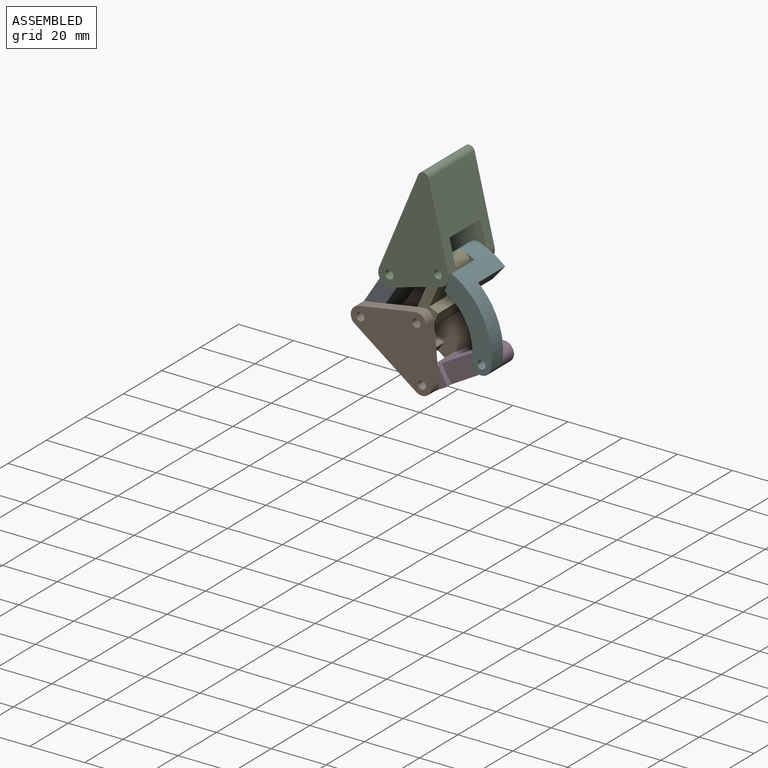
[diagram: assembled view]
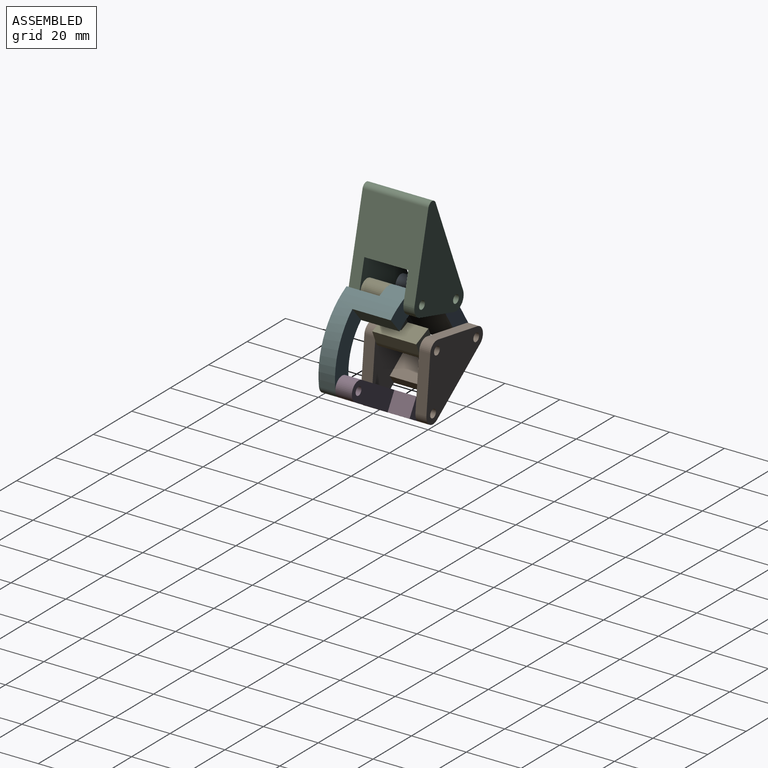
[diagram: assembled view, second angle]
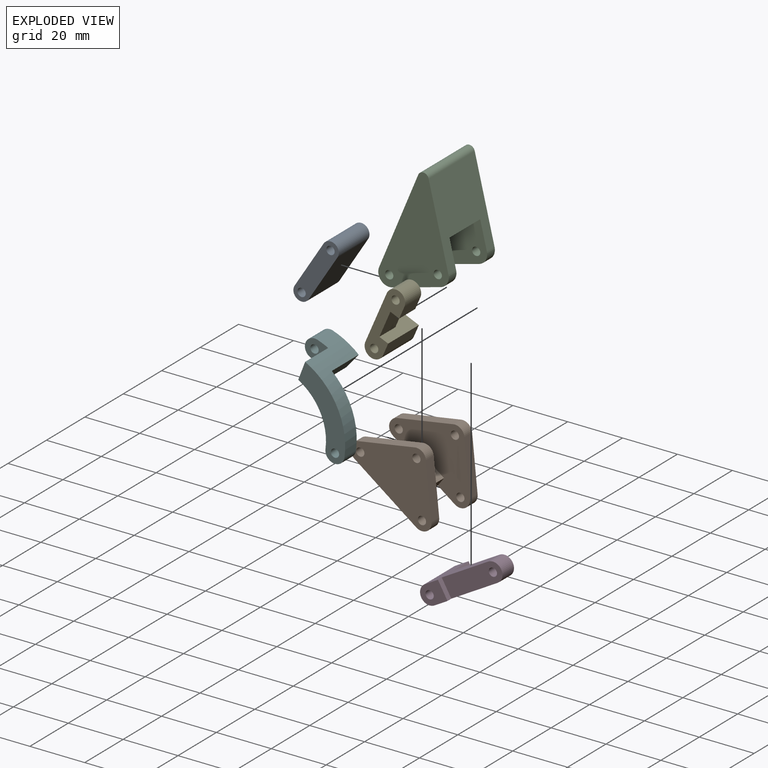
[diagram: exploded view]
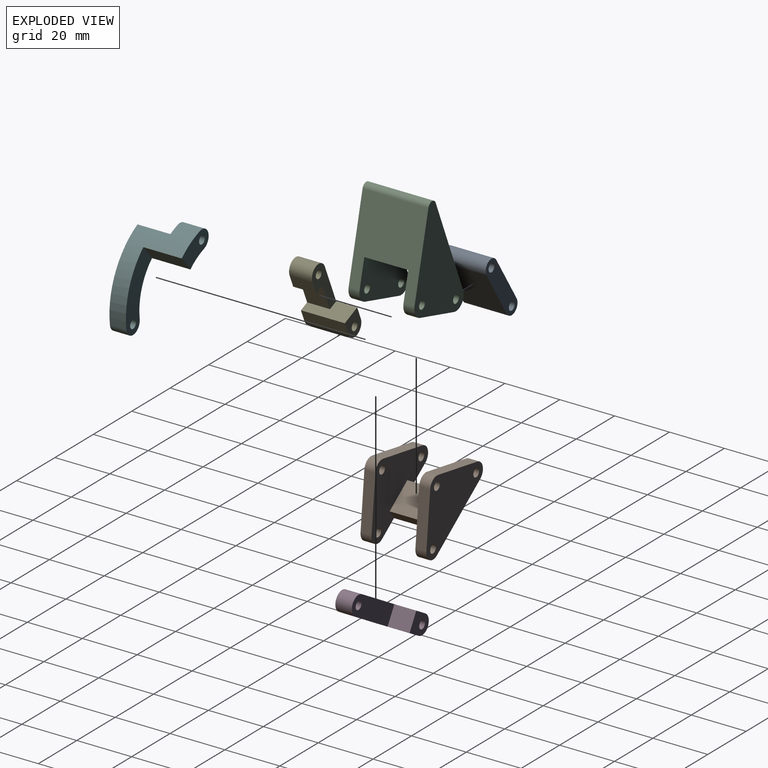
[diagram: exploded view, second angle]
ASSEMBLY  parts=6 mates=7
PART A: 8 faces, bbox 25.7x16x6 mm
  f0: plane 19.7x16mm, normal (0,0,-1), area 315.2mm2, adj f1,f5,f6,f7
  f1: cylinder r=3mm len=16mm, axis (0,1,0), area 150.8mm2, adj f0,f2,f6,f7
  f2: plane 19.7x16mm, normal (0,0,1), area 315.2mm2, adj f1,f5,f6,f7
  f3: cylinder r=1.5mm len=16mm, axis (0,1,0), area 150.8mm2, adj f6,f7
  f4: cylinder r=1.5mm len=16mm, axis (0,1,0), area 150.8mm2, adj f6,f7
  f5: cylinder r=3mm len=16mm, axis (0,1,0), area 150.8mm2, adj f0,f2,f6,f7
  f6: plane 25.7x6mm, normal (0,-1,0), area 132.3mm2, adj f0,f1,f2,f3,f4,f5
  f7: plane 25.7x6mm, normal (0,1,0), area 132.3mm2, adj f0,f1,f2,f3,f4,f5
PART B: 24 faces, bbox 27.1x24x27.7 mm
  f0: cylinder r=3.5mm len=5.85mm, axis (0,1,0), area 32.3mm2, adj f1,f5,f8,f10
  f1: plane 24x20.71mm, normal (-0.74,0,0.67), area 406.1mm2, adj f0,f2,f8,f10,f11,f12,f14,f16
  f2: cylinder r=3.5mm len=6.09mm, axis (0,1,0), area 32.8mm2, adj f1,f3,f8,f10
  f3: plane 20.71x4mm, normal (1,0,0.07), area 83mm2, adj f2,f4,f8,f10
  f4: cylinder r=3.5mm len=4mm, axis (0,1,0), area 22.9mm2, adj f3,f5,f8,f10
  f5: plane 20.05x4mm, normal (0,0,-1), area 80.2mm2, adj f0,f4,f8,f10
  f6: cylinder r=1.5mm len=4mm, axis (0,1,0), area 37.7mm2, adj f8,f10
  f7: cylinder r=1.5mm len=4mm, axis (0,1,0), area 37.7mm2, adj f8,f10
  f8: plane 27.71x27.05mm, normal (0,-1,0), area 465.3mm2, adj f0,f1,f2,f3,f4,f5,f6,f7
  f9: cylinder r=1.5mm len=4mm, axis (0,1,0), area 37.7mm2, adj f8,f10
  f10: plane 27.71x27.05mm, normal (0,1,0), area 421.8mm2, adj f0,f1,f2,f3,f4,f5,f6,f7
  f11: plane 16x2.83mm, normal (0.67,0,0.74), area 61mm2, adj f1,f10,f13,f14
  f12: plane 16x2.83mm, normal (-0.67,0,-0.74), area 61mm2, adj f1,f10,f13,f14
  f13: plane 16x8.48mm, normal (0.74,0,-0.67), area 182.9mm2, adj f10,f11,f12,f14
  f14: plane 27.71x27.05mm, normal (0,-1,0), area 421.8mm2, adj f1,f11,f12,f13,f15,f16,f17,f18
  f15: cylinder r=3.5mm len=4mm, axis (0,1,0), area 22.9mm2, adj f14,f21,f22,f23
  f16: cylinder r=3.5mm len=6.09mm, axis (0,1,0), area 32.8mm2, adj f1,f14,f22,f23
  f17: cylinder r=1.5mm len=4mm, axis (0,1,0), area 37.7mm2, adj f14,f23
  f18: cylinder r=1.5mm len=4mm, axis (0,1,0), area 37.7mm2, adj f14,f23
  f19: cylinder r=1.5mm len=4mm, axis (0,1,0), area 37.7mm2, adj f14,f23
  f20: cylinder r=3.5mm len=5.85mm, axis (0,1,0), area 32.3mm2, adj f1,f14,f21,f23
  f21: plane 20.05x4mm, normal (0,0,-1), area 80.2mm2, adj f14,f15,f20,f23
  f22: plane 20.71x4mm, normal (1,0,0.07), area 83mm2, adj f14,f15,f16,f23
  f23: plane 27.71x27.05mm, normal (0,1,0), area 465.3mm2, adj f1,f15,f16,f17,f18,f19,f20,f21
PART C: 18 faces, bbox 27.2x24x36.5 mm
  f0: plane 26.62x14.22mm, normal (0,1,0), area 324.5mm2, adj f2,f3,f4,f5,f6,f7,f9,f10
  f1: cylinder r=2mm len=24mm, axis (0,1,0), area 120.4mm2, adj f2,f6,f8,f16
  f2: plane 29.31x24mm, normal (-0.79,0,-0.61), area 733.2mm2, adj f0,f1,f3,f8,f10,f13,f16,f17
  f3: cylinder r=4mm len=6.45mm, axis (0,1,0), area 35.7mm2, adj f0,f2,f4,f8
  f4: plane 18.35x4mm, normal (0,0,1), area 73.4mm2, adj f0,f3,f5,f8
  f5: cylinder r=4mm len=4mm, axis (0,1,0), area 24.7mm2, adj f0,f4,f6,f8
  f6: plane 30.59x24mm, normal (1,0,0.03), area 569.2mm2, adj f0,f1,f5,f8,f10,f12,f16,f17
  f7: cylinder r=1.5mm len=4mm, axis (0,1,0), area 37.7mm2, adj f0,f8
  f8: plane 36.54x27.17mm, normal (0,-1,0), area 577.8mm2, adj f1,f2,f3,f4,f5,f6,f7,f9
  f9: cylinder r=1.5mm len=4mm, axis (0,1,0), area 37.7mm2, adj f0,f8
  f10: plane 19.76x16mm, normal (0,0,1), area 316.1mm2, adj f0,f2,f6,f17
  f11: plane 18.35x4mm, normal (0,0,1), area 73.4mm2, adj f12,f13,f16,f17
  f12: cylinder r=4mm len=4mm, axis (0,1,0), area 24.7mm2, adj f6,f11,f16,f17
  f13: cylinder r=4mm len=6.45mm, axis (0,1,0), area 35.7mm2, adj f2,f11,f16,f17
  f14: cylinder r=1.5mm len=4mm, axis (0,1,0), area 37.7mm2, adj f16,f17
  f15: cylinder r=1.5mm len=4mm, axis (0,1,0), area 37.7mm2, adj f16,f17
  f16: plane 36.54x27.17mm, normal (0,1,0), area 577.8mm2, adj f1,f2,f6,f11,f12,f13,f14,f15
  f17: plane 26.62x14.22mm, normal (0,-1,0), area 324.5mm2, adj f2,f6,f10,f11,f12,f13,f14,f15
PART D: 12 faces, bbox 32x16x7 mm
  f0: plane 25x16mm, normal (0,0,1), area 205mm2, adj f1,f2,f5,f6,f7,f8,f9,f10
  f1: cylinder r=3.5mm len=7mm, axis (0,1,0), area 66mm2, adj f0,f3,f7,f9
  f2: plane 9x7mm, normal (0,-1,0), area 50.7mm2, adj f0,f3,f4,f5,f10
  f3: plane 25x16mm, normal (0,0,-1), area 205mm2, adj f1,f2,f5,f6,f7,f8,f9,f10
  f4: cylinder r=1.5mm len=16mm, axis (0,1,0), area 150.8mm2, adj f2,f6
  f5: cylinder r=3.5mm len=16mm, axis (0,1,0), area 175.9mm2, adj f0,f2,f3,f6
  f6: plane 9x7mm, normal (0,1,0), area 50.7mm2, adj f0,f3,f4,f5,f8
  f7: plane 23x7mm, normal (0,1,0), area 148.7mm2, adj f0,f1,f3,f8,f11
  f8: plane 7x2mm, normal (1,0,0), area 14mm2, adj f0,f3,f6,f7
  f9: plane 23x7mm, normal (0,-1,0), area 148.7mm2, adj f0,f1,f3,f10,f11
  f10: plane 8x7mm, normal (1,0,0), area 56mm2, adj f0,f2,f3,f9
  f11: cylinder r=1.5mm len=6mm, axis (0,1,0), area 56.5mm2, adj f7,f9
PART E: 13 faces, bbox 26.7x16x7 mm
  f0: plane 8.35x4.75mm, normal (0,0,1), area 39.6mm2, adj f1,f4,f9,f12
  f1: plane 26.65x7mm, normal (0,1,0), area 126.3mm2, adj f0,f3,f4,f5,f6,f7,f8,f10
  f2: plane 8.25x7mm, normal (0,-1,0), area 45.4mm2, adj f3,f5,f7,f8,f10
  f3: plane 19.65x16mm, normal (0,0,-1), area 200.4mm2, adj f1,f2,f4,f8,f9,f10
  f4: cylinder r=3.5mm len=8.35mm, axis (0,1,0), area 91.8mm2, adj f0,f1,f3,f9
  f5: plane 16x4.75mm, normal (0,0,1), area 75.9mm2, adj f1,f2,f8,f10
  f6: cylinder r=1.5mm len=8.35mm, axis (0,1,0), area 78.7mm2, adj f1,f9
  f7: cylinder r=1.5mm len=16mm, axis (0,1,0), area 150.8mm2, adj f1,f2
  f8: cylinder r=3.5mm len=16mm, axis (0,1,0), area 175.9mm2, adj f1,f2,f3,f5
  f9: plane 18.41x7mm, normal (0,-1,0), area 80.9mm2, adj f0,f3,f4,f6,f10,f11,f12
  f10: plane 16x7mm, normal (1,0,0), area 82.8mm2, adj f1,f2,f3,f5,f9,f11
  f11: plane 10.16x8.35mm, normal (0,0,1), area 84.8mm2, adj f1,f9,f10,f12
  f12: plane 8.35x3.5mm, normal (-1,0,0), area 29.2mm2, adj f0,f1,f9,f11
PART F: 12 faces, bbox 37.1x20x12.4 mm
  f0: cylinder r=3.5mm len=8mm, axis (0,1,0), area 88mm2, adj f3,f6,f7,f10
  f1: cylinder r=1.5mm len=8mm, axis (0,1,0), area 75.4mm2, adj f7,f10
  f2: plane 32.34x12.43mm, normal (0,1,0), area 211.9mm2, adj f3,f4,f5,f6,f11
  f3: cylinder r=27mm len=34.53mm, axis (0,1,0), area 327.4mm2, adj f0,f2,f4,f7,f8,f9,f10,f11
  f4: cylinder r=3.5mm len=6.19mm, axis (0,1,0), area 66mm2, adj f2,f3,f6,f8
  f5: cylinder r=1.5mm len=6mm, axis (0,1,0), area 56.5mm2, adj f2,f8
  f6: cylinder r=20mm len=25.57mm, axis (0,1,0), area 235.2mm2, adj f0,f2,f4,f7,f8,f9,f10,f11
  f7: plane 12.99x11.32mm, normal (0,-1,0), area 79.4mm2, adj f0,f1,f3,f6,f9
  f8: plane 26.2x12.43mm, normal (0,-1,0), area 173.1mm2, adj f3,f4,f5,f6,f9
  f9: plane 14x6.67mm, normal (0.95,0,-0.31), area 98mm2, adj f3,f6,f7,f8
  f10: plane 8.98x8.63mm, normal (0,1,0), area 40.7mm2, adj f0,f1,f3,f6,f11
  f11: plane 12x5.62mm, normal (-0.8,0,0.6), area 84.7mm2, adj f2,f3,f6,f10
PLACE A rot(axis=(0,-1,0),57.6deg) t=(45.22,155.56,-45.94)mm
PLACE B rot(axis=(0,-1,0),95.7deg) t=(62.41,155.56,-70.8)mm
PLACE C rot(axis=(-0.99,0,-0.13),180deg) t=(62.91,155.56,-2.6)mm
PLACE D rot(axis=(0.97,0,0.26),180deg) t=(73.25,155.56,-64.56)mm
PLACE E rot(axis=(-0.84,0,-0.55),180deg) t=(64.3,155.56,-41.83)mm
PLACE F rot(axis=(-0.87,0,0.49),180deg) t=(60.8,153.56,-55.11)mm
MATE revolute F.f0 <-> C.f5  axis (0,1,0) through (68.2,163.56,-32.81)mm
MATE revolute D.f4 <-> B.f0  axis (0,-1,0) through (62.41,163.56,-70.8)mm
MATE revolute A.f3 <-> B.f2  axis (0,-1,0) through (39.94,147.56,-54.26)mm
MATE revolute D.f11 <-> F.f4  axis (0,-1,0) through (84.08,149.56,-58.32)mm
MATE revolute C.f3 <-> A.f1  axis (0,1,0) through (50.49,147.56,-37.62)mm
MATE revolute C.f5 <-> E.f4  axis (0,1,0) through (68.2,147.56,-32.81)mm
MATE revolute E.f7 <-> B.f7  axis (0,1,0) through (60.41,163.56,-50.85)mm
